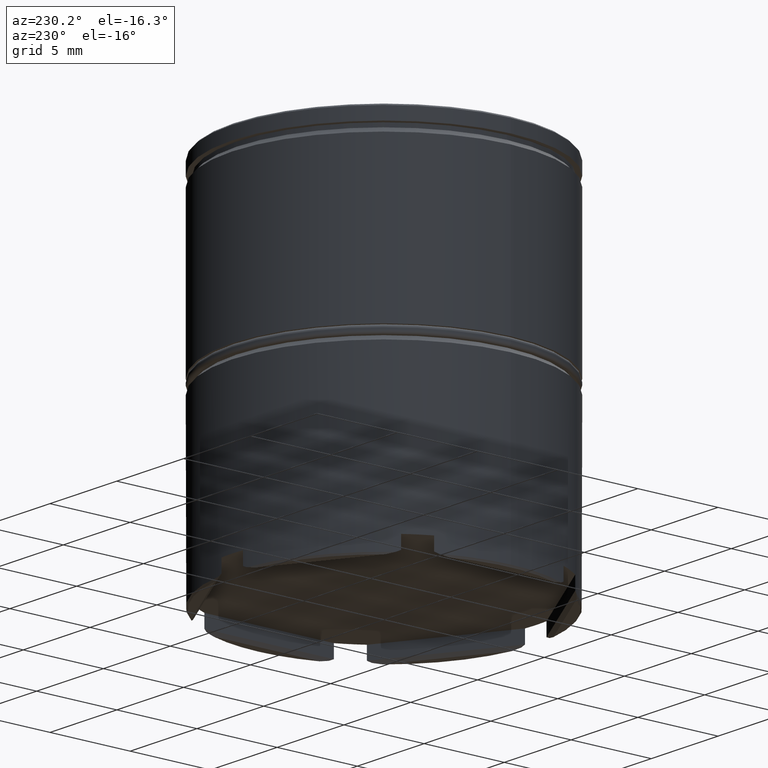
[diagram: clean part render]
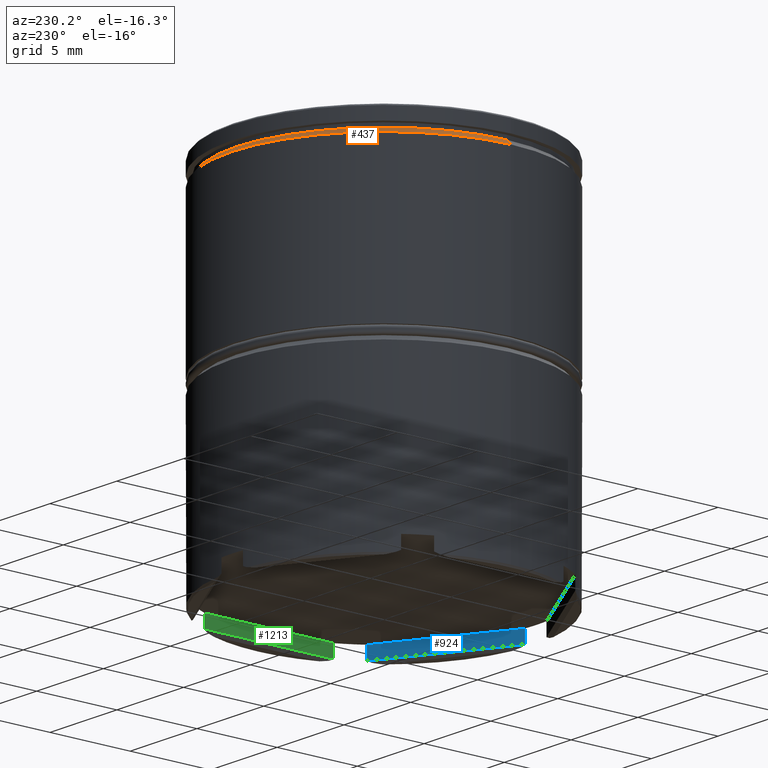
[diagram: same view with three faces highlighted in distinct colors, each labeled with its STEP entity id]
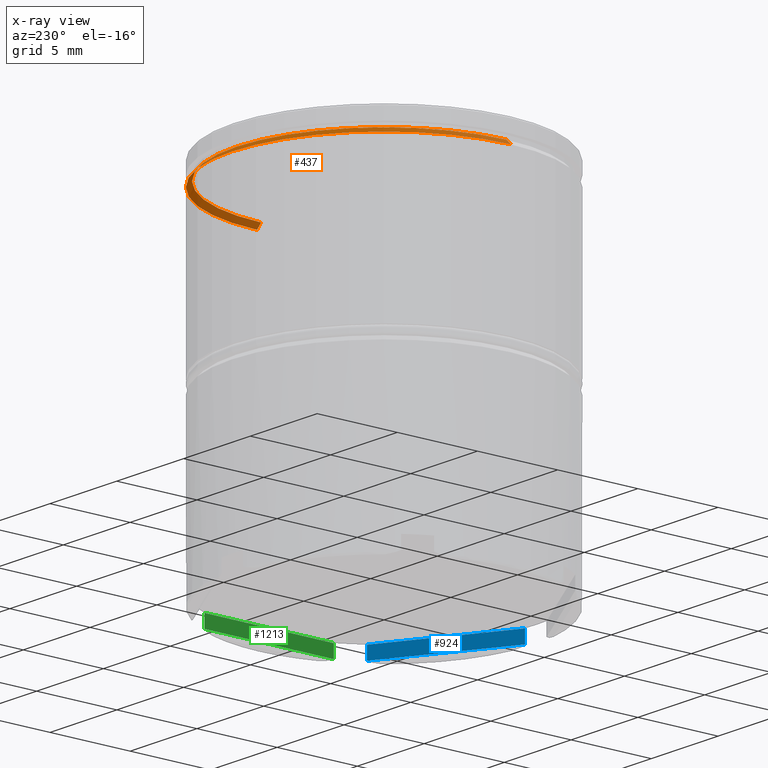
[diagram: x-ray of the same camera — body ghosted, the three highlighted faces saturated]
A machine part, auxiliary view with three faces highlighted in distinct colors.
The next image is the same camera in x-ray (body ghosted, the three faces saturated) — at least one of them is partly hidden behind the body in this view.
Their STEP definitions:

[orange] entity #437 — the highlighted conical surface has half-angle 45 deg.
#41 = CARTESIAN_POINT ( 'NONE',  ( 9.199999999999999289, 0.000000000000000000, -1.125000000000000222 ) ) ;
#123 = DIRECTION ( 'NONE',  ( 0.000000000000000000, 0.000000000000000000, -1.000000000000000000 ) ) ;
#156 = DIRECTION ( 'NONE',  ( 0.000000000000000000, 0.000000000000000000, -1.000000000000000000 ) ) ;
#189 = CARTESIAN_POINT ( 'NONE',  ( 9.500000000000000000, 0.000000000000000000, -1.425000000000003597 ) ) ;
#280 = CARTESIAN_POINT ( 'NONE',  ( 0.000000000000000000, 0.000000000000000000, -1.125000000000000222 ) ) ;
#308 = LINE ( 'NONE', #807, #1508 ) ;
#372 = CONICAL_SURFACE ( 'NONE', #1309, 9.199999999999999289, 0.7853981633974425058 ) ;
#394 = CARTESIAN_POINT ( 'NONE',  ( 0.000000000000000000, 0.000000000000000000, -1.425000000000003597 ) ) ;
#406 = DIRECTION ( 'NONE',  ( 1.000000000000000000, 0.000000000000000000, 0.000000000000000000 ) ) ;
#407 = FACE_OUTER_BOUND ( 'NONE', #1058, .T. ) ;
#408 = ORIENTED_EDGE ( 'NONE', *, *, #1622, .T. ) ;
#437 = ADVANCED_FACE ( 'NONE', ( #407 ), #372, .T. ) ;
#481 = VECTOR ( 'NONE', #485, 1000.000000000000000 ) ;
#485 = DIRECTION ( 'NONE',  ( -0.7071067811865434649, 0.000000000000000000, -0.7071067811865516806 ) ) ;
#694 = DIRECTION ( 'NONE',  ( 1.000000000000000000, 0.000000000000000000, 0.000000000000000000 ) ) ;
#697 = DIRECTION ( 'NONE',  ( -0.000000000000000000, -0.000000000000000000, 1.000000000000000000 ) ) ;
#706 = CARTESIAN_POINT ( 'NONE',  ( -9.500000000000000000, 1.163414459189985485E-15, -1.425000000000003597 ) ) ;
#727 = CIRCLE ( 'NONE', #925, 9.199999999999999289 ) ;
#743 = EDGE_CURVE ( 'NONE', #1350, #1616, #1284, .T. ) ;
#772 = AXIS2_PLACEMENT_3D ( 'NONE', #394, #123, #406 ) ;
#807 = CARTESIAN_POINT ( 'NONE',  ( 9.199999999999999289, 1.126675055215564822E-15, -1.125000000000000222 ) ) ;
#843 = VERTEX_POINT ( 'NONE', #41 ) ;
#908 = CARTESIAN_POINT ( 'NONE',  ( 0.000000000000000000, 0.000000000000000000, -1.125000000000000222 ) ) ;
#925 = AXIS2_PLACEMENT_3D ( 'NONE', #280, #697, #694 ) ;
#1020 = CARTESIAN_POINT ( 'NONE',  ( -9.199999999999999289, 1.126675055215564822E-15, -1.125000000000000222 ) ) ;
#1031 = EDGE_CURVE ( 'NONE', #1461, #1350, #1629, .T. ) ;
#1058 = EDGE_LOOP ( 'NONE', ( #1268, #408, #1089, #1609 ) ) ;
#1089 = ORIENTED_EDGE ( 'NONE', *, *, #743, .F. ) ;
#1194 = EDGE_CURVE ( 'NONE', #843, #1461, #727, .T. ) ;
#1268 = ORIENTED_EDGE ( 'NONE', *, *, #1194, .F. ) ;
#1284 = CIRCLE ( 'NONE', #772, 9.500000000000000000 ) ;
#1309 = AXIS2_PLACEMENT_3D ( 'NONE', #908, #156, #1427 ) ;
#1324 = DIRECTION ( 'NONE',  ( 0.7071067811865434649, 8.659560562354883554E-17, -0.7071067811865516806 ) ) ;
#1340 = CARTESIAN_POINT ( 'NONE',  ( -9.199999999999999289, 0.000000000000000000, -1.125000000000000222 ) ) ;
#1350 = VERTEX_POINT ( 'NONE', #706 ) ;
#1427 = DIRECTION ( 'NONE',  ( -1.000000000000000000, 0.000000000000000000, 0.000000000000000000 ) ) ;
#1461 = VERTEX_POINT ( 'NONE', #1020 ) ;
#1508 = VECTOR ( 'NONE', #1324, 1000.000000000000000 ) ;
#1609 = ORIENTED_EDGE ( 'NONE', *, *, #1031, .F. ) ;
#1616 = VERTEX_POINT ( 'NONE', #189 ) ;
#1622 = EDGE_CURVE ( 'NONE', #843, #1616, #308, .T. ) ;
#1629 = LINE ( 'NONE', #1340, #481 ) ;

[blue] entity #924 — the highlighted planar face has unit normal (0.5, -0.866, 0).
#43 = VECTOR ( 'NONE', #671, 1000.000000000000000 ) ;
#176 = LINE ( 'NONE', #701, #243 ) ;
#203 = DIRECTION ( 'NONE',  ( 0.4999999999999998890, -0.8660254037844387076, 0.000000000000000000 ) ) ;
#243 = VECTOR ( 'NONE', #1296, 1000.000000000000000 ) ;
#293 = VERTEX_POINT ( 'NONE', #1484 ) ;
#446 = ORIENTED_EDGE ( 'NONE', *, *, #862, .F. ) ;
#463 = FACE_OUTER_BOUND ( 'NONE', #618, .T. ) ;
#473 = EDGE_CURVE ( 'NONE', #293, #944, #762, .T. ) ;
#476 = CARTESIAN_POINT ( 'NONE',  ( 7.795354059319311801, -5.429774865485116564, -22.30000000000000426 ) ) ;
#522 = CARTESIAN_POINT ( 'NONE',  ( 7.795354059319311801, -5.429774865485116564, 0.000000000000000000 ) ) ;
#570 = VECTOR ( 'NONE', #1329, 1000.000000000000000 ) ;
#588 = CARTESIAN_POINT ( 'NONE',  ( 0.8046459406806866221, -9.465862079607228807, -21.50000000000000000 ) ) ;
#618 = EDGE_LOOP ( 'NONE', ( #1417, #1563, #1344, #446 ) ) ;
#671 = DIRECTION ( 'NONE',  ( -0.000000000000000000, -0.000000000000000000, 1.000000000000000000 ) ) ;
#701 = CARTESIAN_POINT ( 'NONE',  ( 1.013664654969002710, -9.345185068647198889, -22.30000000000000426 ) ) ;
#762 = LINE ( 'NONE', #522, #800 ) ;
#767 = VERTEX_POINT ( 'NONE', #937 ) ;
#788 = EDGE_CURVE ( 'NONE', #944, #767, #176, .T. ) ;
#800 = VECTOR ( 'NONE', #1531, 1000.000000000000000 ) ;
#857 = DIRECTION ( 'NONE',  ( 0.8660254037844387076, 0.4999999999999998890, 0.000000000000000000 ) ) ;
#862 = EDGE_CURVE ( 'NONE', #293, #920, #917, .T. ) ;
#917 = LINE ( 'NONE', #1557, #570 ) ;
#920 = VERTEX_POINT ( 'NONE', #588 ) ;
#924 = ADVANCED_FACE ( 'NONE', ( #463 ), #1457, .F. ) ;
#937 = CARTESIAN_POINT ( 'NONE',  ( 0.8046459406806866221, -9.465862079607228807, -22.30000000000000426 ) ) ;
#944 = VERTEX_POINT ( 'NONE', #476 ) ;
#1157 = LINE ( 'NONE', #1294, #43 ) ;
#1294 = CARTESIAN_POINT ( 'NONE',  ( 0.8046459406806866221, -9.465862079607228807, 0.000000000000000000 ) ) ;
#1296 = DIRECTION ( 'NONE',  ( -0.8660254037844387076, -0.4999999999999998890, 0.000000000000000000 ) ) ;
#1329 = DIRECTION ( 'NONE',  ( -0.8660254037844387076, -0.4999999999999998890, 0.000000000000000000 ) ) ;
#1344 = ORIENTED_EDGE ( 'NONE', *, *, #1515, .T. ) ;
#1349 = CARTESIAN_POINT ( 'NONE',  ( 8.599999999999999645, -4.965212315030782086, -21.50000000000000000 ) ) ;
#1417 = ORIENTED_EDGE ( 'NONE', *, *, #473, .T. ) ;
#1420 = AXIS2_PLACEMENT_3D ( 'NONE', #1349, #203, #857 ) ;
#1457 = PLANE ( 'NONE',  #1420 ) ;
#1484 = CARTESIAN_POINT ( 'NONE',  ( 7.795354059319311801, -5.429774865485116564, -21.50000000000000000 ) ) ;
#1515 = EDGE_CURVE ( 'NONE', #767, #920, #1157, .T. ) ;
#1531 = DIRECTION ( 'NONE',  ( 0.000000000000000000, 0.000000000000000000, -1.000000000000000000 ) ) ;
#1557 = CARTESIAN_POINT ( 'NONE',  ( 8.599999999999999645, -4.965212315030782086, -21.50000000000000000 ) ) ;
#1563 = ORIENTED_EDGE ( 'NONE', *, *, #788, .T. ) ;

[green] entity #1213 — the highlighted planar face has unit normal (1, 0, -0).
#44 = DIRECTION ( 'NONE',  ( -0.000000000000000000, -0.000000000000000000, 1.000000000000000000 ) ) ;
#127 = VERTEX_POINT ( 'NONE', #435 ) ;
#153 = FACE_OUTER_BOUND ( 'NONE', #1199, .T. ) ;
#188 = VECTOR ( 'NONE', #491, 1000.000000000000000 ) ;
#215 = ORIENTED_EDGE ( 'NONE', *, *, #595, .F. ) ;
#226 = CARTESIAN_POINT ( 'NONE',  ( 8.599999999999999645, -3.794733192202054628, -22.29999999999999716 ) ) ;
#229 = ORIENTED_EDGE ( 'NONE', *, *, #1085, .T. ) ;
#310 = DIRECTION ( 'NONE',  ( 1.000000000000000000, 0.000000000000000000, -0.000000000000000000 ) ) ;
#336 = ORIENTED_EDGE ( 'NONE', *, *, #1526, .T. ) ;
#376 = CARTESIAN_POINT ( 'NONE',  ( 8.599999999999999645, 4.036087214122112243, -22.29999999999999716 ) ) ;
#380 = LINE ( 'NONE', #414, #1603 ) ;
#414 = CARTESIAN_POINT ( 'NONE',  ( 8.599999999999999645, -4.036087214122112243, 0.000000000000000000 ) ) ;
#427 = VECTOR ( 'NONE', #709, 1000.000000000000000 ) ;
#435 = CARTESIAN_POINT ( 'NONE',  ( 8.599999999999999645, -4.036087214122112243, -21.50000000000000000 ) ) ;
#450 = LINE ( 'NONE', #226, #427 ) ;
#491 = DIRECTION ( 'NONE',  ( 0.000000000000000000, -1.000000000000000000, 0.000000000000000000 ) ) ;
#595 = EDGE_CURVE ( 'NONE', #1546, #127, #629, .T. ) ;
#629 = LINE ( 'NONE', #1131, #188 ) ;
#661 = CARTESIAN_POINT ( 'NONE',  ( 8.599999999999999645, -4.036087214122112243, -22.29999999999999716 ) ) ;
#683 = VERTEX_POINT ( 'NONE', #376 ) ;
#709 = DIRECTION ( 'NONE',  ( 0.000000000000000000, -1.000000000000000000, 0.000000000000000000 ) ) ;
#861 = CARTESIAN_POINT ( 'NONE',  ( 8.599999999999999645, 4.036087214122112243, 0.000000000000000000 ) ) ;
#868 = AXIS2_PLACEMENT_3D ( 'NONE', #1035, #310, #1537 ) ;
#1004 = EDGE_CURVE ( 'NONE', #683, #1093, #450, .T. ) ;
#1035 = CARTESIAN_POINT ( 'NONE',  ( 8.599999999999999645, 4.965212315030778534, -21.50000000000000000 ) ) ;
#1042 = VECTOR ( 'NONE', #1502, 1000.000000000000000 ) ;
#1048 = CARTESIAN_POINT ( 'NONE',  ( 8.599999999999999645, 4.036087214122112243, -21.50000000000000000 ) ) ;
#1085 = EDGE_CURVE ( 'NONE', #1546, #683, #1382, .T. ) ;
#1093 = VERTEX_POINT ( 'NONE', #661 ) ;
#1131 = CARTESIAN_POINT ( 'NONE',  ( 8.599999999999999645, 4.965212315030778534, -21.50000000000000000 ) ) ;
#1199 = EDGE_LOOP ( 'NONE', ( #229, #1621, #336, #215 ) ) ;
#1207 = PLANE ( 'NONE',  #868 ) ;
#1213 = ADVANCED_FACE ( 'NONE', ( #153 ), #1207, .F. ) ;
#1382 = LINE ( 'NONE', #861, #1042 ) ;
#1502 = DIRECTION ( 'NONE',  ( 0.000000000000000000, 0.000000000000000000, -1.000000000000000000 ) ) ;
#1526 = EDGE_CURVE ( 'NONE', #1093, #127, #380, .T. ) ;
#1537 = DIRECTION ( 'NONE',  ( -0.000000000000000000, 0.000000000000000000, -1.000000000000000000 ) ) ;
#1546 = VERTEX_POINT ( 'NONE', #1048 ) ;
#1603 = VECTOR ( 'NONE', #44, 1000.000000000000000 ) ;
#1621 = ORIENTED_EDGE ( 'NONE', *, *, #1004, .T. ) ;